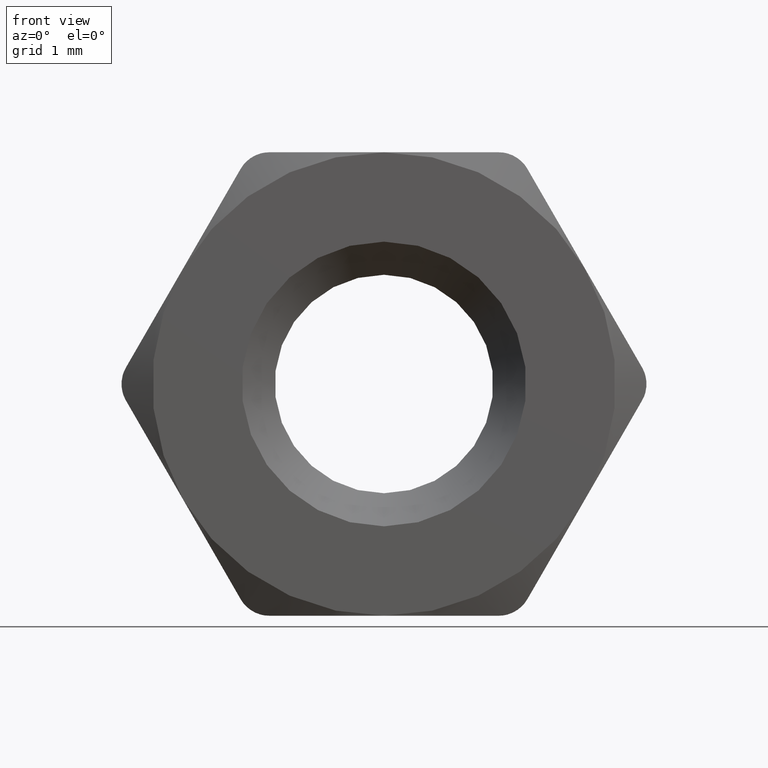
[diagram: clean part render]
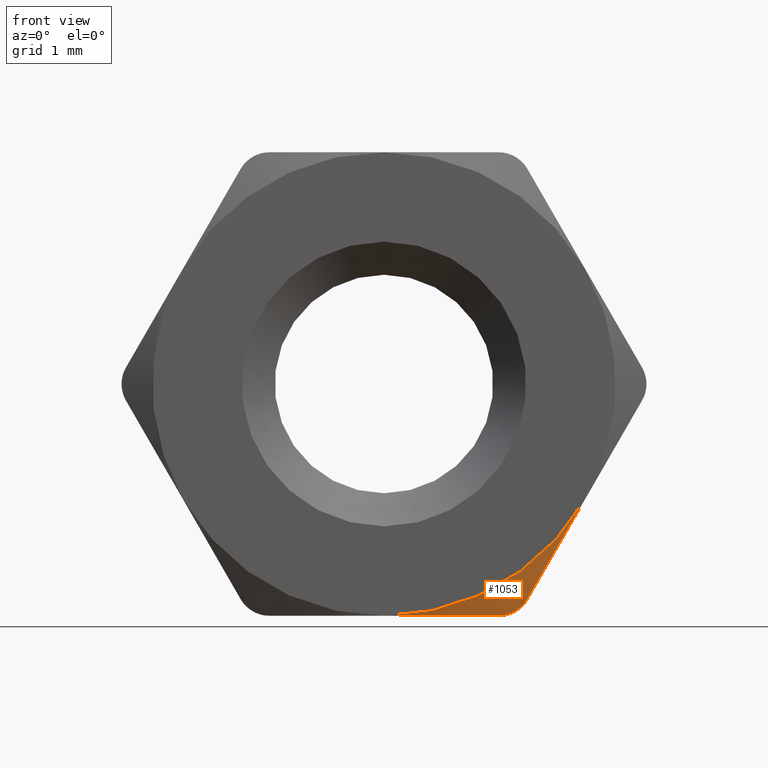
[diagram: same view with one face highlighted and labeled with its STEP entity id]
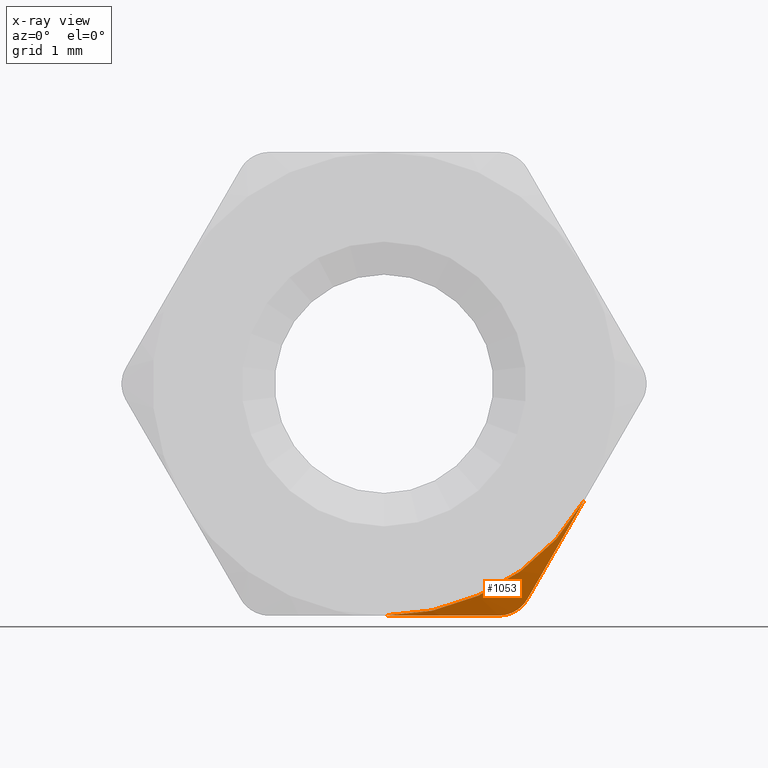
[diagram: x-ray of the same camera — body ghosted, the highlighted face saturated]
A machine part, front view. The second image highlights one B-rep face of the part: STEP entity #1053.
The next image is the same camera in x-ray: the body ghosted, the highlighted face saturated — about 0% of this face is hidden behind the body in this view.
In plain terms, the highlighted conical surface has half-angle 60 deg.
Its self-contained STEP definition (entity closure, byte-faithful):
#62 = CARTESIAN_POINT ( 'NONE',  ( 1.732050807568869200, -1.366101065752246800, -3.500000000000001300 ) ) ;
#92 = CARTESIAN_POINT ( 'NONE',  ( -3.386450907888041400E-016, -1.599999999999999200, 0.0000000000000000000 ) ) ;
#119 = AXIS2_PLACEMENT_3D ( 'NONE', #92, #1186, #1206 ) ;
#159 = CARTESIAN_POINT ( 'NONE',  ( 1.818213813996152100, -1.344036980735073200, -3.500000000000003100 ) ) ;
#194 = CONICAL_SURFACE ( 'NONE', #119, 3.500000000000000000, 1.047197551196603200 ) ;
#304 = CARTESIAN_POINT ( 'NONE',  ( 1.732050807568869200, -1.366101065752246800, -3.500000000000001300 ) ) ;
#307 = B_SPLINE_CURVE_WITH_KNOTS ( 'NONE', 3,
 ( #304, #159, #955, #319, #1401, #1564 ),
 .UNSPECIFIED., .F., .F.,
 ( 4, 2, 4 ),
 ( 2.045668567712605500E-018, 0.0002632573935146148600, 0.0005265147870292280900 ),
 .UNSPECIFIED. ) ;
#319 = CARTESIAN_POINT ( 'NONE',  ( 2.057833504183642000, -1.332013481293206100, -3.389344969317413800 ) ) ;
#331 = VERTEX_POINT ( 'NONE', #997 ) ;
#361 = ORIENTED_EDGE ( 'NONE', *, *, #1447, .T. ) ;
#429 = CARTESIAN_POINT ( 'NONE',  ( 1.450919357738891200, -1.438091453126729300, -3.500000000000002200 ) ) ;
#437 = ORIENTED_EDGE ( 'NONE', *, *, #769, .F. ) ;
#458 = VERTEX_POINT ( 'NONE', #1215 ) ;
#508 = AXIS2_PLACEMENT_3D ( 'NONE', #1881, #1591, #610 ) ;
#610 = DIRECTION ( 'NONE',  ( -1.776356839400250500E-015, 0.0000000000000000000, 1.000000000000000000 ) ) ;
#645 = CARTESIAN_POINT ( 'NONE',  ( 2.449406306941841000, -1.497437231825316600, -2.757503827997073800 ) ) ;
#725 = CARTESIAN_POINT ( 'NONE',  ( 0.2915641572602628600, -1.599999999999998800, -3.500000000000001300 ) ) ;
#731 = CARTESIAN_POINT ( 'NONE',  ( 1.732050807568869200, -1.366101065752246800, -3.500000000000001300 ) ) ;
#769 = EDGE_CURVE ( 'NONE', #458, #331, #1589, .T. ) ;
#813 = ORIENTED_EDGE ( 'NONE', *, *, #1144, .F. ) ;
#814 = CARTESIAN_POINT ( 'NONE',  ( 2.737935425120993300, -1.578227301213956900, -2.257756735847737500 ) ) ;
#907 = CARTESIAN_POINT ( 'NONE',  ( 1.166222246419597000, -1.496961480775119300, -3.500000000000001800 ) ) ;
#955 = CARTESIAN_POINT ( 'NONE',  ( 1.905537153561605000, -1.332088313469486500, -3.477102041811246800 ) ) ;
#971 = FACE_OUTER_BOUND ( 'NONE', #1593, .T. ) ;
#997 = CARTESIAN_POINT ( 'NONE',  ( 3.031088913245535600, -1.599999999999999900, -1.749999999999998400 ) ) ;
#1053 = ADVANCED_FACE ( 'NONE', ( #971 ), #194, .T. ) ;
#1081 = B_SPLINE_CURVE_WITH_KNOTS ( 'NONE', 3,
 ( #1925, #1129, #814, #645, #1433, #1937 ),
 .UNSPECIFIED., .F., .F.,
 ( 4, 2, 4 ),
 ( 0.002044882221487531500, 0.002915149854128587000, 0.003785417486769642500 ),
 .UNSPECIFIED. ) ;
#1129 = CARTESIAN_POINT ( 'NONE',  ( 2.884555072172297700, -1.600000000000004300, -2.003804057767061100 ) ) ;
#1144 = EDGE_CURVE ( 'NONE', #1890, #458, #1444, .T. ) ;
#1182 = CARTESIAN_POINT ( 'NONE',  ( 2.165063509461090600, -1.366101065752247000, -3.250000000000001800 ) ) ;
#1186 = DIRECTION ( 'NONE',  ( 2.116531817430027100E-016, 1.000000000000000000, 0.0000000000000000000 ) ) ;
#1206 = DIRECTION ( 'NONE',  ( 1.000000000000000000, -1.858632295689436100E-016, 0.0000000000000000000 ) ) ;
#1215 = CARTESIAN_POINT ( 'NONE',  ( -3.386450907888039500E-016, -1.599999999999999200, -3.500000000000000000 ) ) ;
#1384 = CARTESIAN_POINT ( 'NONE',  ( -3.386450907888039500E-016, -1.599999999999999200, -3.500000000000000000 ) ) ;
#1401 = CARTESIAN_POINT ( 'NONE',  ( 2.121969493532742200, -1.344030572379085500, -3.324641025090492500 ) ) ;
#1433 = CARTESIAN_POINT ( 'NONE',  ( 2.306667253663686100, -1.438623072130314400, -3.004735120499118400 ) ) ;
#1444 = B_SPLINE_CURVE_WITH_KNOTS ( 'NONE', 3,
 ( #731, #429, #907, #2026, #725, #1384 ),
 .UNSPECIFIED., .F., .F.,
 ( 4, 2, 4 ),
 ( 0.001780457575266044000, 0.002650971486567353900, 0.003521485397868663800 ),
 .UNSPECIFIED. ) ;
#1447 = EDGE_CURVE ( 'NONE', #1890, #1967, #307, .T. ) ;
#1564 = CARTESIAN_POINT ( 'NONE',  ( 2.165063509461090600, -1.366101065752247000, -3.250000000000001800 ) ) ;
#1589 = CIRCLE ( 'NONE', #508, 3.499999999999998700 ) ;
#1591 = DIRECTION ( 'NONE',  ( 0.0000000000000000000, -1.000000000000000000, -0.0000000000000000000 ) ) ;
#1593 = EDGE_LOOP ( 'NONE', ( #813, #361, #1846, #437 ) ) ;
#1599 = EDGE_CURVE ( 'NONE', #331, #1967, #1081, .T. ) ;
#1846 = ORIENTED_EDGE ( 'NONE', *, *, #1599, .F. ) ;
#1881 = CARTESIAN_POINT ( 'NONE',  ( -3.386450907888041400E-016, -1.600000000000000100, 1.283079225268731100E-015 ) ) ;
#1890 = VERTEX_POINT ( 'NONE', #62 ) ;
#1925 = CARTESIAN_POINT ( 'NONE',  ( 3.031088913245535600, -1.599999999999999900, -1.749999999999998400 ) ) ;
#1937 = CARTESIAN_POINT ( 'NONE',  ( 2.165063509461090600, -1.366101065752247000, -3.250000000000001800 ) ) ;
#1967 = VERTEX_POINT ( 'NONE', #1182 ) ;
#2026 = CARTESIAN_POINT ( 'NONE',  ( 0.5869129917412796400, -1.578217762318620200, -3.500000000000000900 ) ) ;